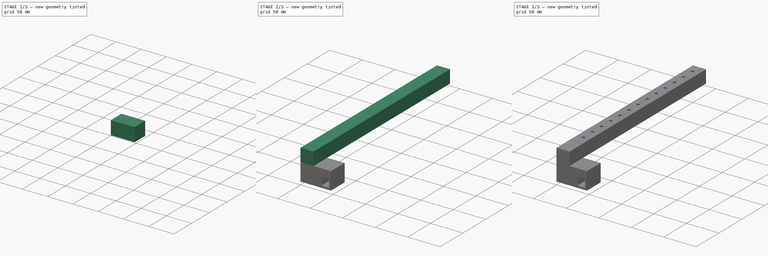
[diagram: build sequence overview — one tinted view per stage of 3, left to right]
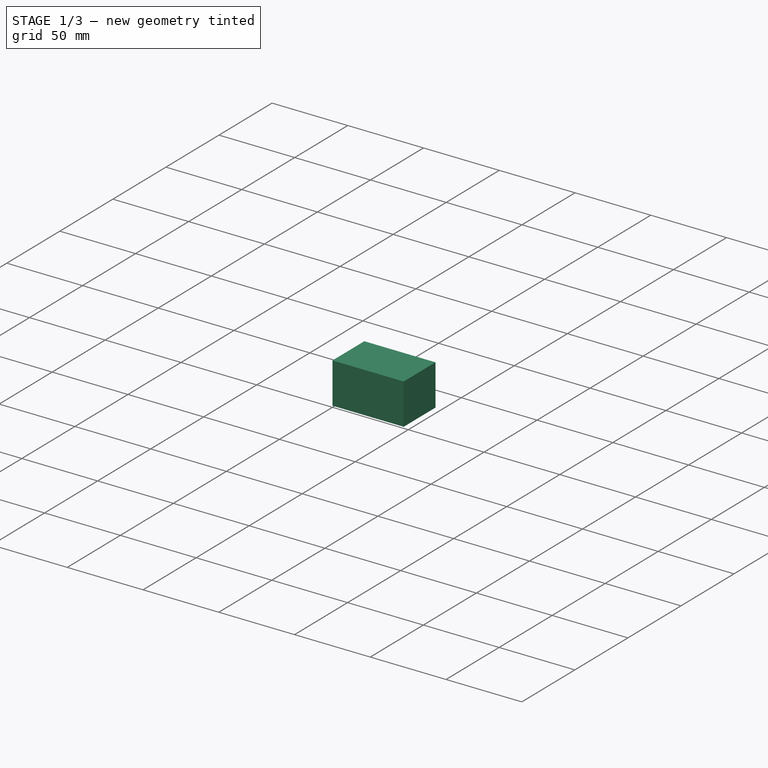
[diagram: stage 1 of 3 — iso view after this stage's code; geometry added in this stage tinted green]
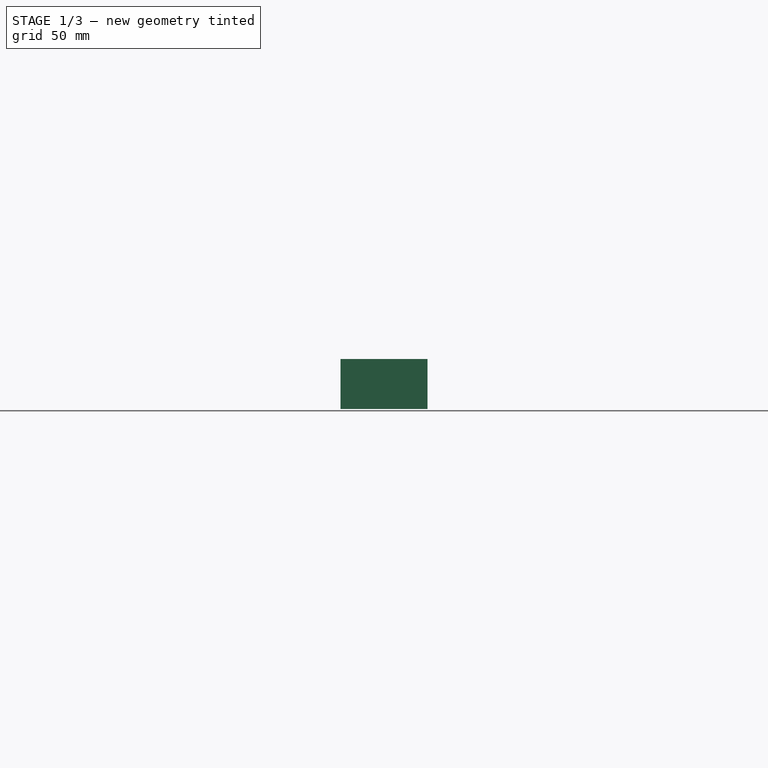
[diagram: stage 1 of 3 — front view after this stage's code; geometry added in this stage tinted green]
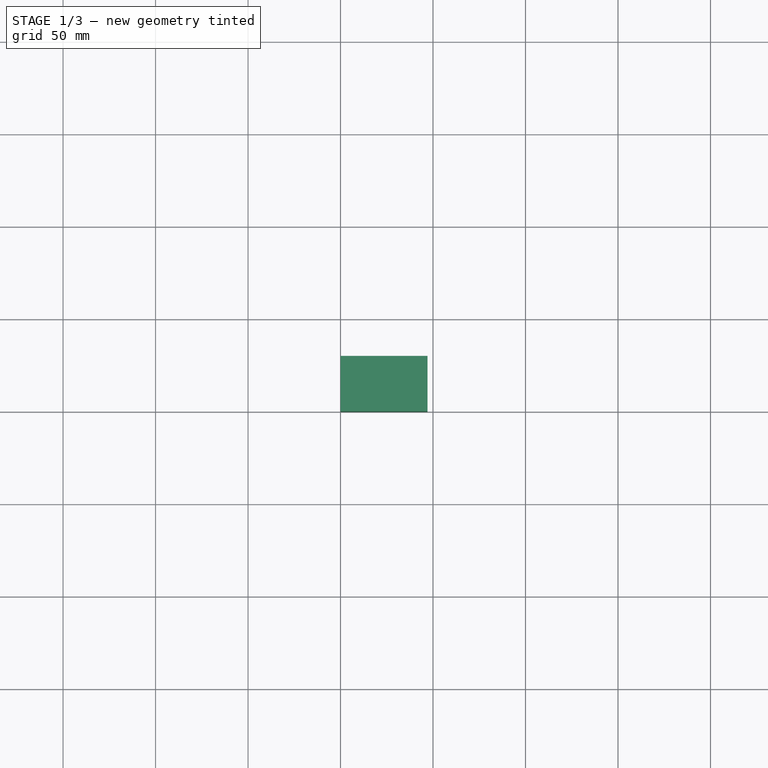
[diagram: stage 1 of 3 — top view after this stage's code; geometry added in this stage tinted green]
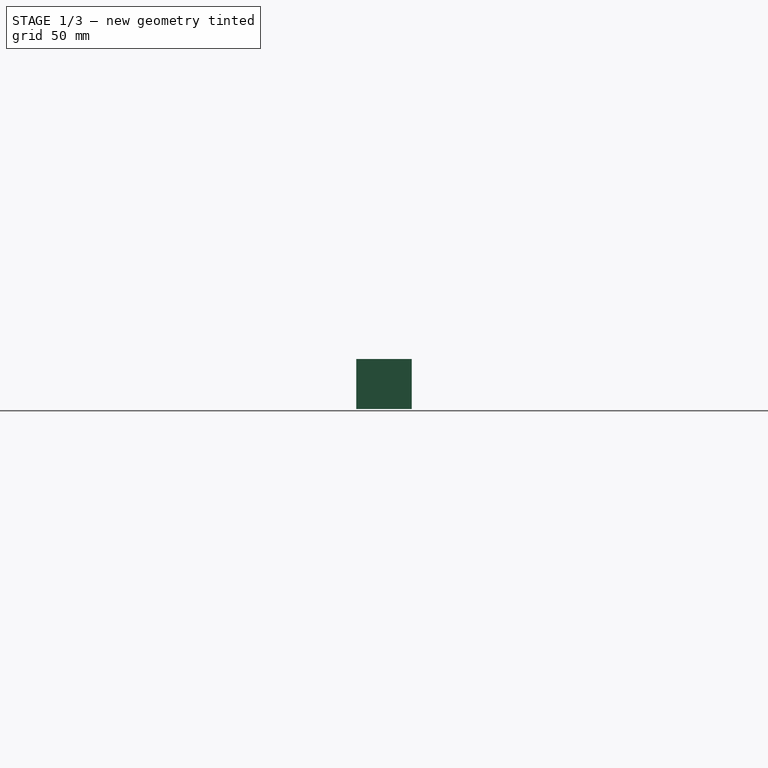
[diagram: stage 1 of 3 — right view after this stage's code; geometry added in this stage tinted green]
FCSTD DOCUMENT  (FreeCAD 0.18.1R)
Label: H-field_holder_withRod
License: All rights reserved
LicenseURL: http://en.wikipedia.org/wiki/All_rights_reserved
objects: Sketcher::SketchObject×4, PartDesign::Pad×3, PartDesign::ShapeBinder×3, PartDesign::Body×3, PartDesign::Hole×1, Part::Cut×1, Part::Fuse×1
note: 20 computed .brp shape members not serialized (recipe doc carries the construction recipe); baked Part::Feature solids carry a one-line shape summary decoded from their .brp

FEATURE [PartDesign::ShapeBinder] CopyPad
  TraceSupport = false
FEATURE [Sketcher::SketchObject] Sketch001
  MapMode = 5
  Placement = pos=(0,0,0) rot=(1,0,0;3.14159rad)
  Support = -> [CopyPad]
  sketch-geometry (4):
    g0: LineSegment StartX=0 StartY=0 StartZ=0 EndX=47 EndY=0 EndZ=0
    g1: LineSegment StartX=47 StartY=0 StartZ=0 EndX=47 EndY=-30 EndZ=0
    g2: LineSegment StartX=47 StartY=-30 StartZ=0 EndX=0 EndY=-30 EndZ=0
    g3: LineSegment StartX=0 StartY=-30 StartZ=0 EndX=0 EndY=0 EndZ=0
  constraints (11):
    c: Coincident(g0,g1)
    c: Coincident(g1,g2)
    c: Coincident(g2,g3)
    c: Coincident(g3,g0)
    c: Horizontal(g0)
    c: Horizontal(g2)
    c: Vertical(g1)
    c: Vertical(g3)
    c: Coincident(g0,g-1)
    c: DistanceY(g1,g1) = 30
    c: DistanceX(g2,g2) = 47
FEATURE [PartDesign::Pad] Pad001
  Length = 27
  Length2 = 100
  Profile = -> Sketch001
  Type = 0
FEATURE [PartDesign::Body] Body001
  Group = -> [CopyPad,Sketch001,Pad001]
  Origin = -> Origin001
  Tip = -> Pad001
FEATURE [PartDesign::ShapeBinder] CopyPad001001
  TraceSupport = false
FEATURE [Sketcher::SketchObject] Sketch003
  MapMode = 5
  Placement = pos=(0,30,0) rot=(0,0.707107,0.707107;3.14159rad)
  Support = -> [CopyPad001001]
  sketch-geometry (4):
    g0: LineSegment StartX=-44 StartY=-12 StartZ=0 EndX=-32 EndY=-12 EndZ=0
    g1: LineSegment StartX=-32 StartY=-12 StartZ=0 EndX=-32 EndY=-24 EndZ=0
    g2: LineSegment StartX=-32 StartY=-24 StartZ=0 EndX=-44 EndY=-24 EndZ=0
    g3: LineSegment StartX=-44 StartY=-24 StartZ=0 EndX=-44 EndY=-12 EndZ=0
  constraints (12):
    c: Coincident(g0,g1)
    c: Coincident(g1,g2)
    c: Coincident(g2,g3)
    c: Coincident(g3,g0)
    c: Horizontal(g0)
    c: Horizontal(g2)
    c: Vertical(g1)
    c: Vertical(g3)
    c: DistanceY(g1,g1) = 12
    c: DistanceX(g0,g0) = 12
    c: DistanceX(g0,g-1) = 32
    c: DistanceY(g0,g-1) = 12
FEATURE [PartDesign::Pad] Pad002
  Length = 30
  Length2 = 100
  Profile = -> Sketch003
  Reversed = true
  Type = 0
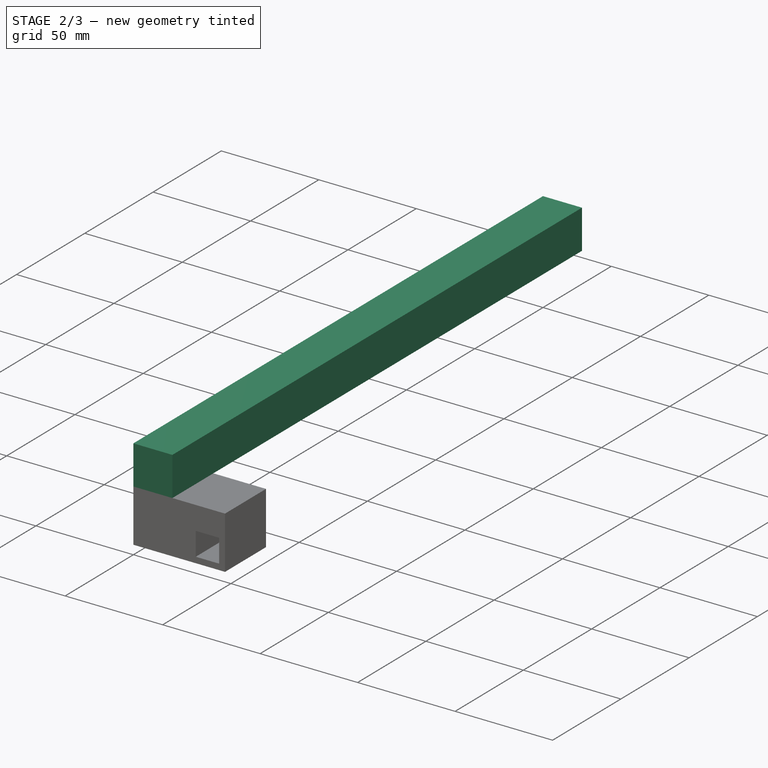
[diagram: stage 2 of 3 — iso view after this stage's code; geometry added in this stage tinted green]
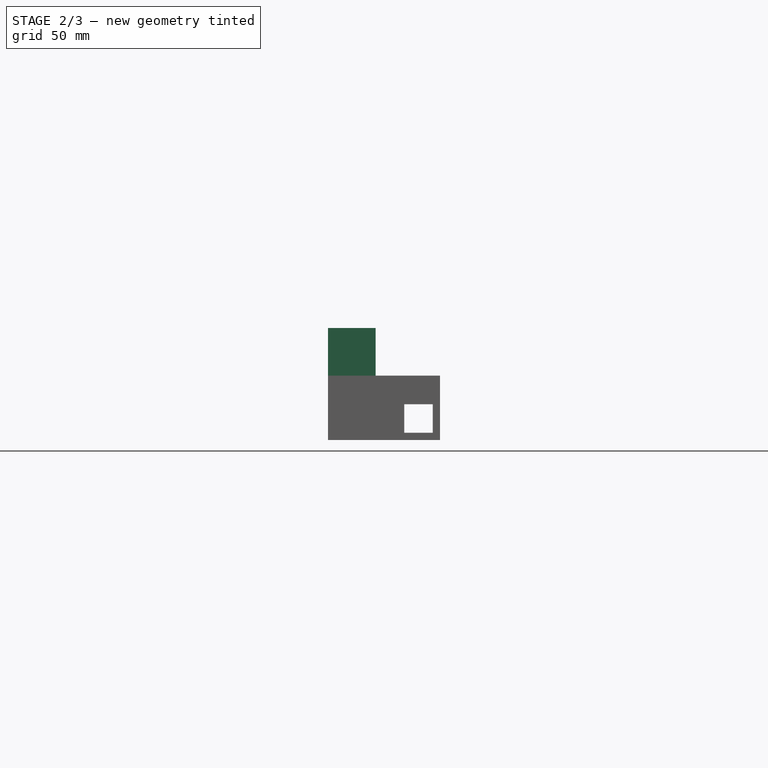
[diagram: stage 2 of 3 — front view after this stage's code; geometry added in this stage tinted green]
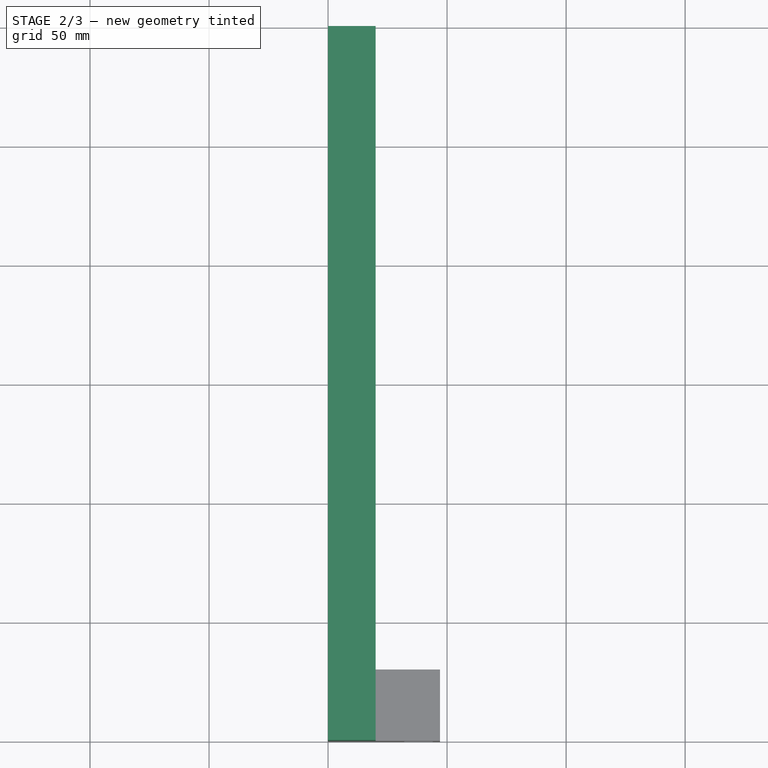
[diagram: stage 2 of 3 — top view after this stage's code; geometry added in this stage tinted green]
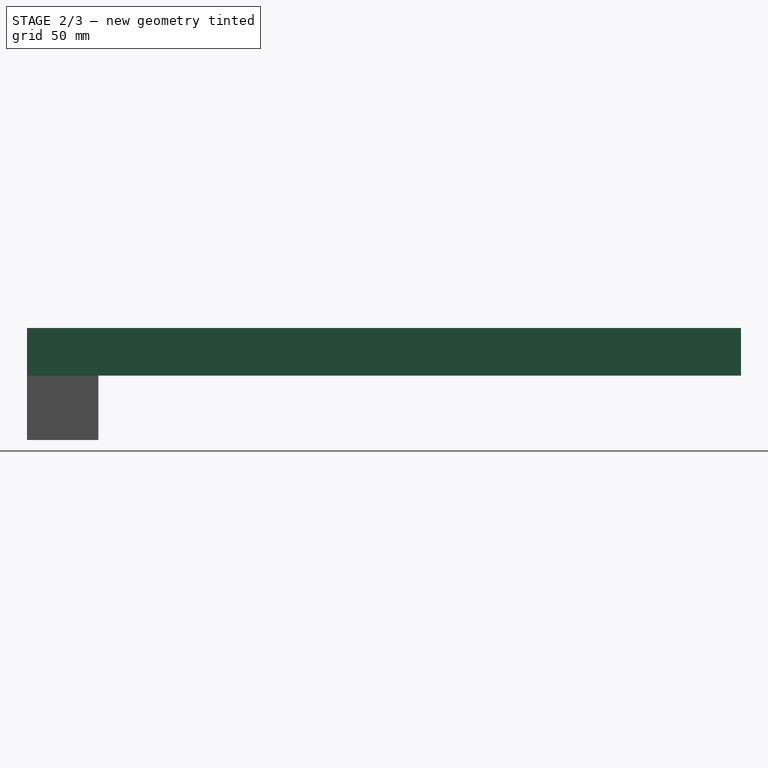
[diagram: stage 2 of 3 — right view after this stage's code; geometry added in this stage tinted green]
FEATURE [Sketcher::SketchObject] Sketch
  MapMode = 5
  Support = -> [XY_Plane]
  sketch-geometry (4):
    g0: LineSegment StartX=0 StartY=300 StartZ=0 EndX=20 EndY=300 EndZ=0
    g1: LineSegment StartX=20 StartY=300 StartZ=0 EndX=20 EndY=0 EndZ=0
    g2: LineSegment StartX=20 StartY=0 StartZ=0 EndX=0 EndY=0 EndZ=0
    g3: LineSegment StartX=0 StartY=0 StartZ=0 EndX=0 EndY=300 EndZ=0
  constraints (12):
    c: Coincident(g0,g1)
    c: Coincident(g1,g2)
    c: Coincident(g2,g3)
    c: Coincident(g3,g0)
    c: Horizontal(g0)
    c: Horizontal(g2)
    c: Vertical(g1)
    c: Vertical(g3)
    c: PointOnObject(g0,g-2)
    c: PointOnObject(g1,g-1)
    c: DistanceX(g0,g0) = 20
    c: DistanceY(g3,g3) = 300
FEATURE [PartDesign::Pad] Pad
  Length = 20
  Length2 = 100
  Profile = -> Sketch
  Type = 0
FEATURE [PartDesign::Body] Body  label="Rod"
  Group = -> [Sketch,Pad,Sketch004,Hole]
  Origin = -> Origin
  Tip = -> Hole
FEATURE [Part::Cut] Cut
  Base = -> Body001
  Tool = -> Body003
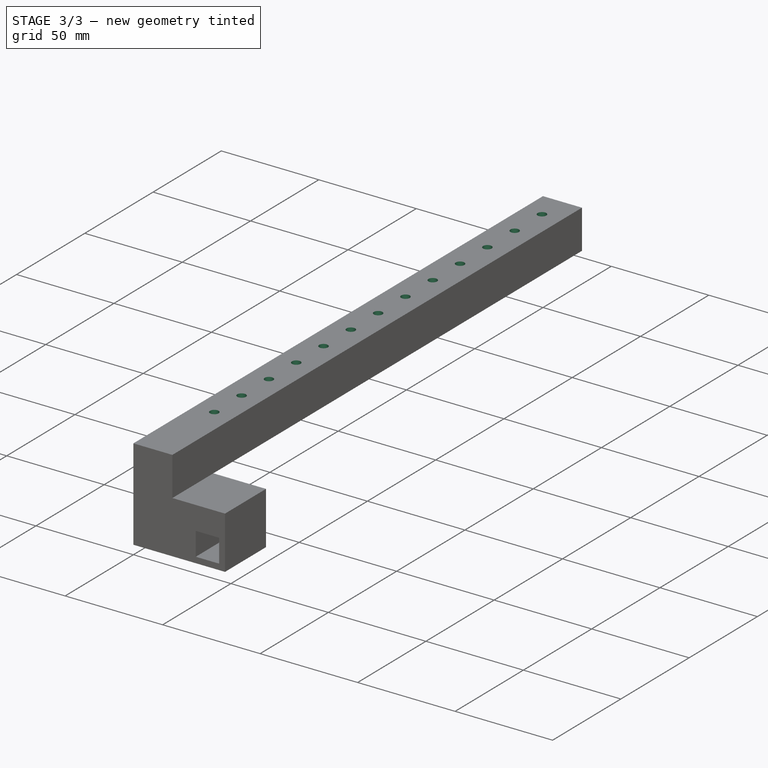
[diagram: stage 3 of 3 — iso view after this stage's code; geometry added in this stage tinted green]
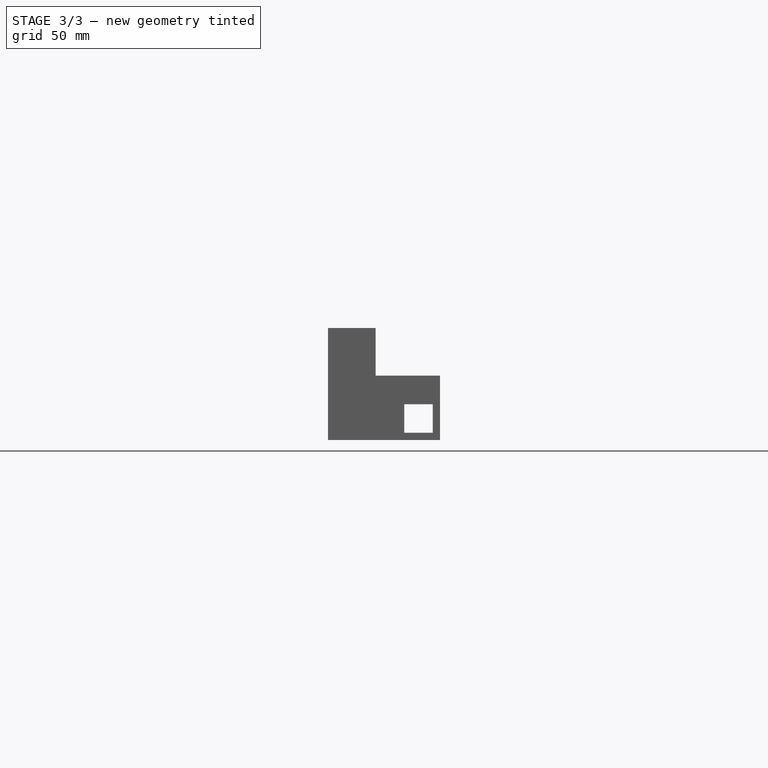
[diagram: stage 3 of 3 — front view after this stage's code; geometry added in this stage tinted green]
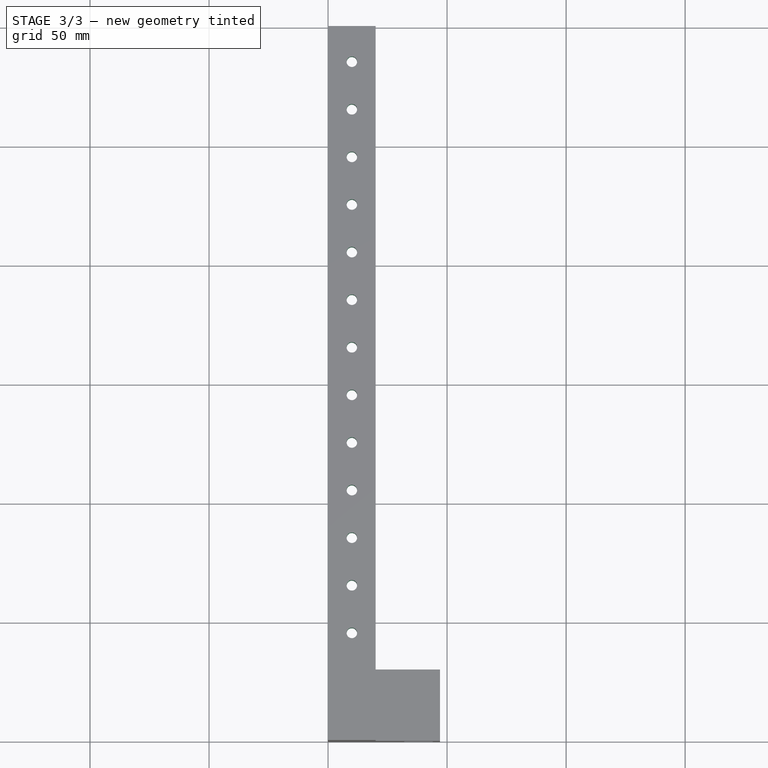
[diagram: stage 3 of 3 — top view after this stage's code; geometry added in this stage tinted green]
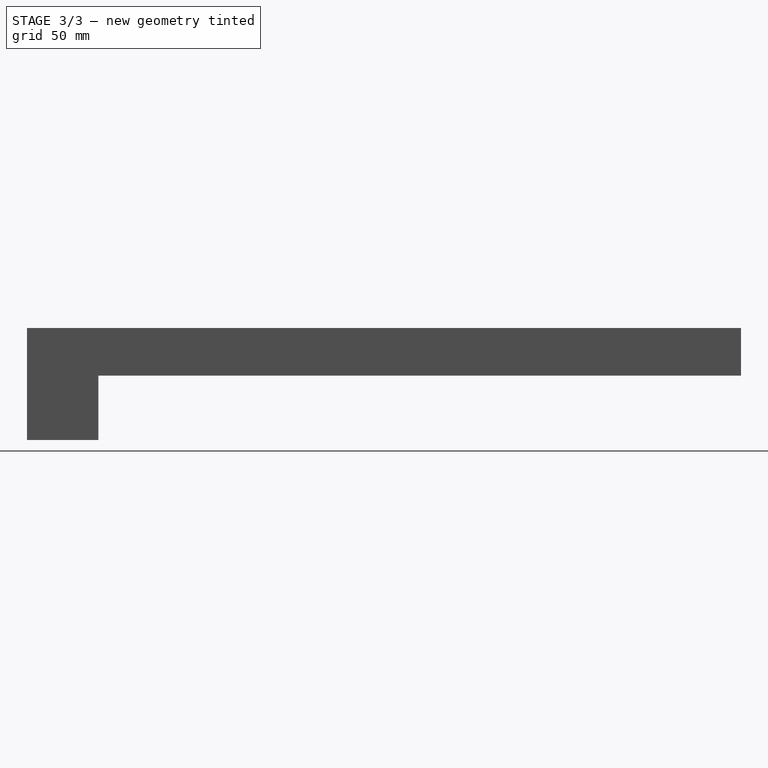
[diagram: stage 3 of 3 — right view after this stage's code; geometry added in this stage tinted green]
FEATURE [PartDesign::ShapeBinder] CopyPad001002
  TraceSupport = false
FEATURE [PartDesign::Body] Body003
  Group = -> [CopyPad001001,Sketch003,Pad002,CopyPad001002]
  Origin = -> Origin003
  Tip = -> Pad002
FEATURE [Sketcher::SketchObject] Sketch004
  MapMode = 5
  Placement = pos=(0,0,0) rot=(1,0,0;3.14159rad)
  Support = -> [Pad]
  sketch-geometry (13):
    g0: Circle CenterX=10 CenterY=-45 CenterZ=0 NormalX=0 NormalY=0 NormalZ=1 AngleXU=0 Radius=6.31332
    g1: Circle CenterX=10 CenterY=-65 CenterZ=0 NormalX=0 NormalY=0 NormalZ=1 AngleXU=0 Radius=6.31332
    g2: Circle CenterX=10 CenterY=-85 CenterZ=0 NormalX=0 NormalY=0 NormalZ=1 AngleXU=0 Radius=6.31332
    g3: Circle CenterX=10 CenterY=-105 CenterZ=0 NormalX=0 NormalY=0 NormalZ=1 AngleXU=0 Radius=6.31332
    g4: Circle CenterX=10 CenterY=-125 CenterZ=0 NormalX=0 NormalY=0 NormalZ=1 AngleXU=0 Radius=6.31332
    g5: Circle CenterX=10 CenterY=-145 CenterZ=0 NormalX=0 NormalY=0 NormalZ=1 AngleXU=0 Radius=6.31332
    g6: Circle CenterX=10 CenterY=-165 CenterZ=0 NormalX=0 NormalY=0 NormalZ=1 AngleXU=0 Radius=6.31332
    g7: Circle CenterX=10 CenterY=-185 CenterZ=0 NormalX=0 NormalY=0 NormalZ=1 AngleXU=0 Radius=6.31332
    g8: Circle CenterX=10 CenterY=-205 CenterZ=0 NormalX=0 NormalY=0 NormalZ=1 AngleXU=0 Radius=6.31332
    g9: Circle CenterX=10 CenterY=-225 CenterZ=0 NormalX=0 NormalY=0 NormalZ=1 AngleXU=0 Radius=6.31332
    g10: Circle CenterX=10 CenterY=-245 CenterZ=0 NormalX=0 NormalY=0 NormalZ=1 AngleXU=0 Radius=6.31332
    g11: Circle CenterX=10 CenterY=-265 CenterZ=0 NormalX=0 NormalY=0 NormalZ=1 AngleXU=0 Radius=6.31332
    g12: Circle CenterX=10 CenterY=-285 CenterZ=0 NormalX=0 NormalY=0 NormalZ=1 AngleXU=0 Radius=6.31332
  constraints (21):
    c: DistanceX(g-1,g0) = 10
    c: DistanceY(g0,g-1) = 45
    c: DistanceY(g1,g0) = 20
    c: DistanceY(g3,g2) = 20
    c: DistanceY(g2,g1) = 20
    c: DistanceY(g5,g4) = 20
    c: DistanceY(g7,g6) = 20
    c: DistanceY(g6,g5) = 20
    c: DistanceY(g4,g3) = 20
    c: DistanceY(g9,g8) = 20
    c: DistanceY(g11,g10) = 20
    c: DistanceY(g12,g11) = 20
    c: DistanceY(g10,g9) = 20
    c: DistanceY(g8,g7) = 20
    c: DistanceX(g-1,g6) = 10
    c: DistanceX(g-1,g12) = 10
    c: DistanceX(g-1,g11) = 10
    c: DistanceX(g-1,g10) = 10
    c: DistanceX(g-1,g9) = 10
    c: DistanceX(g-1,g8) = 10
    c: DistanceX(g-1,g7) = 10
FEATURE [PartDesign::Hole] Hole
  BaseFeature = -> Pad
  Depth = 25
  DepthType = 0
  Diameter = 4.4
  DrillPoint = 1
  DrillPointAngle = 118
  HoleCutCountersinkAngle = 90
  HoleCutDepth = 5
  HoleCutDiameter = 6
  HoleCutType = -1
  ModelActualThread = false
  Profile = -> Sketch004
  Tapered = false
  TaperedAngle = 90
  ThreadAngle = 0
  ThreadClass = 0
  ThreadCutOffInner = 0
  ThreadCutOffOuter = 0
  ThreadDirection = 0
  ThreadFit = 0
  ThreadPitch = 0
  ThreadSize = -1
  ThreadType = 1
  Threaded = false
FEATURE [Part::Fuse] Fusion
  Base = -> Body
  Tool = -> Cut
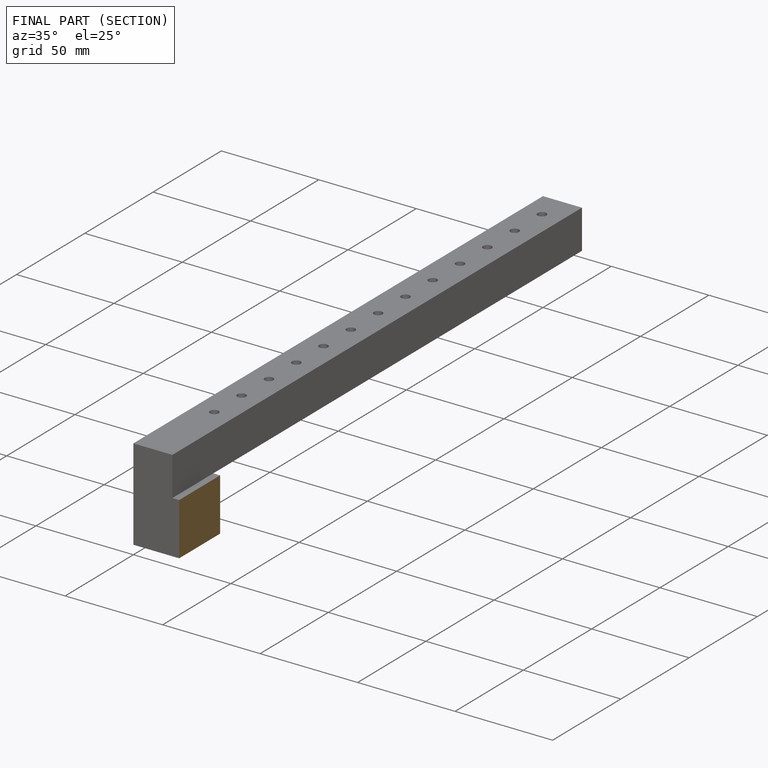
[diagram: finished part — half-section view (interior)]
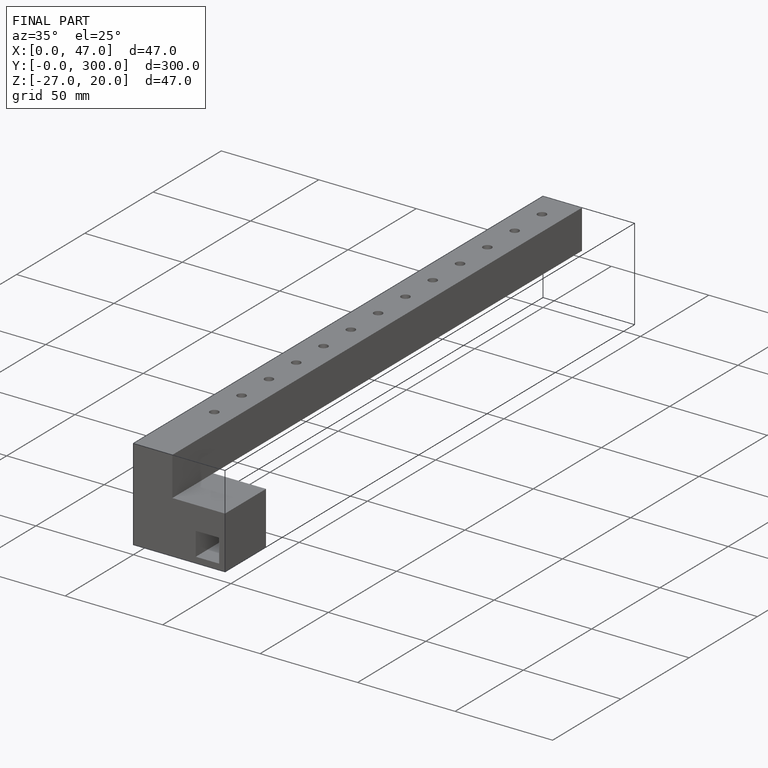
[diagram: finished part — iso view with bounding-box wireframe]
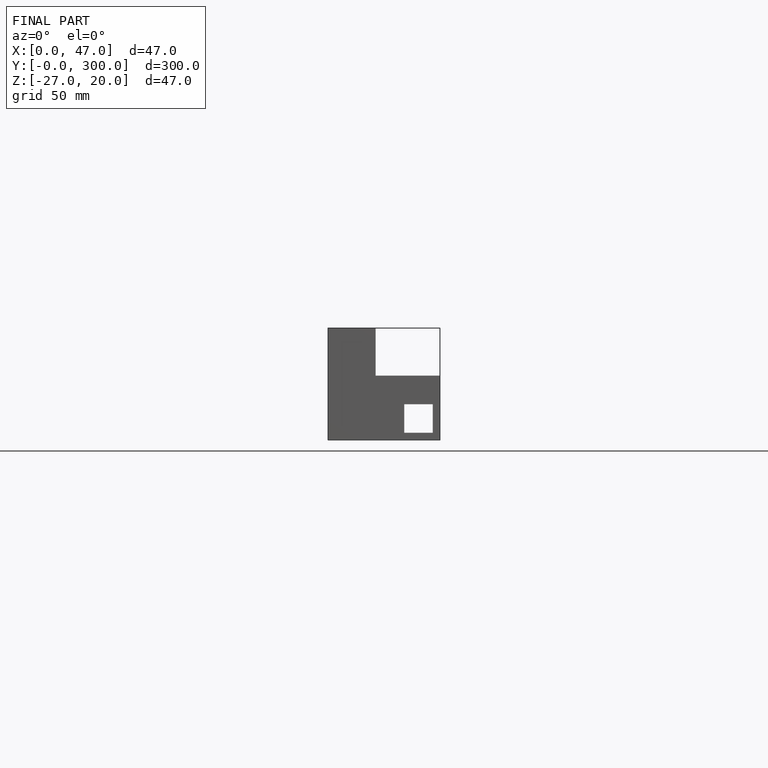
[diagram: finished part — front view with bounding-box wireframe]
